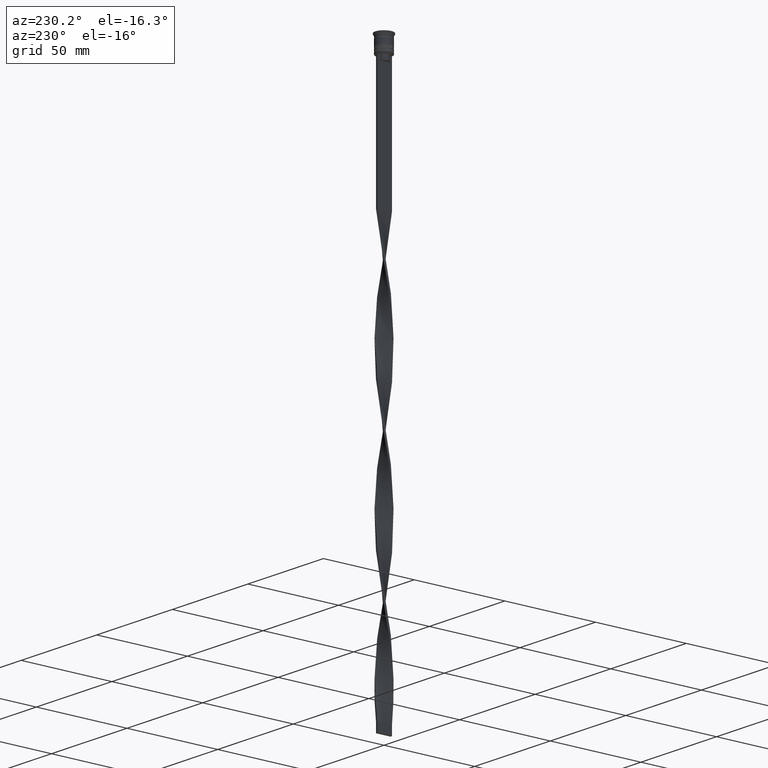
[diagram: clean part render]
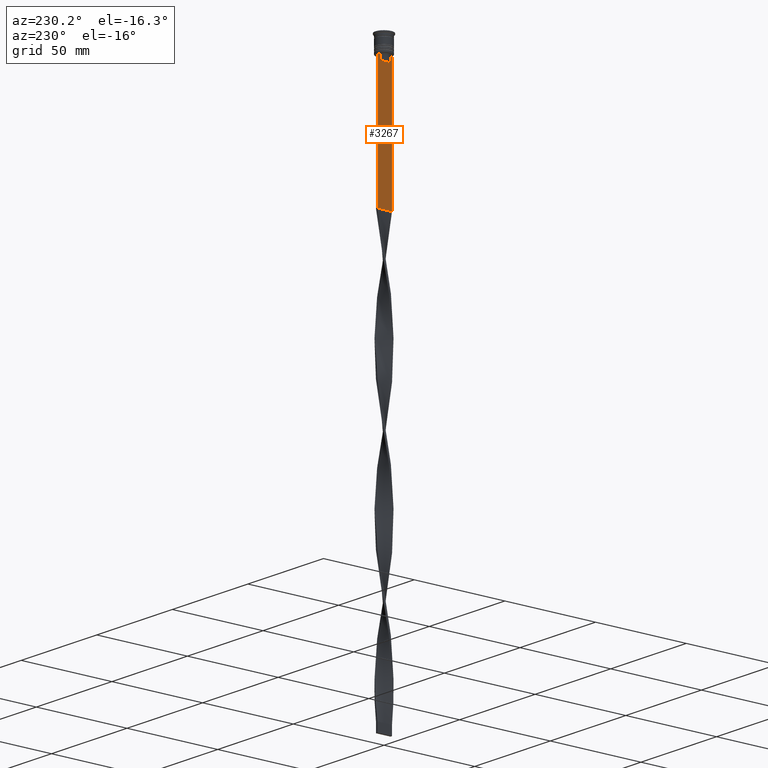
[diagram: same view with one face highlighted and labeled with its STEP entity id]
A machine part, auxiliary view. The second image highlights one B-rep face of the part: STEP entity #3267.
In plain terms, the highlighted planar face has unit normal (-1, 0, 0).
Its self-contained STEP definition (entity closure, byte-faithful):
#5 = CARTESIAN_POINT ( 'NONE',  ( -0.5000000000000000000, -4.000000000000000000, -1.437742251701450202 ) ) ;
#7 = CARTESIAN_POINT ( 'NONE',  ( -0.5000000000000000000, 4.000000000000000000, -78.00000000000000000 ) ) ;
#189 = LINE ( 'NONE', #1429, #1840 ) ;
#231 = DIRECTION ( 'NONE',  ( -1.000000000000000000, 0.000000000000000000, 0.000000000000000000 ) ) ;
#337 = CARTESIAN_POINT ( 'NONE',  ( -0.5000000000000000000, -4.000000000000000000, -78.00000000000000000 ) ) ;
#389 = VERTEX_POINT ( 'NONE', #7 ) ;
#501 = PLANE ( 'NONE',  #1921 ) ;
#653 = CARTESIAN_POINT ( 'NONE',  ( -0.5000000000000000000, -4.000000000000000000, -78.00000000000000000 ) ) ;
#689 = ORIENTED_EDGE ( 'NONE', *, *, #2829, .T. ) ;
#761 = VERTEX_POINT ( 'NONE', #2192 ) ;
#768 = VERTEX_POINT ( 'NONE', #3708 ) ;
#788 = CARTESIAN_POINT ( 'NONE',  ( -0.5000000000000000000, -4.000000000000000000, -9.500000000000000000 ) ) ;
#824 = EDGE_CURVE ( 'NONE', #2775, #3923, #3350, .T. ) ;
#855 = CARTESIAN_POINT ( 'NONE',  ( -0.5000000000000000000, 4.000000000000000000, -1.437742251701450202 ) ) ;
#888 = ORIENTED_EDGE ( 'NONE', *, *, #2624, .F. ) ;
#956 = CARTESIAN_POINT ( 'NONE',  ( -0.5000000000000000000, 3.110064308016796897, -9.500000000000000000 ) ) ;
#961 = EDGE_CURVE ( 'NONE', #761, #1891, #3209, .T. ) ;
#994 = DIRECTION ( 'NONE',  ( 0.000000000000000000, 1.000000000000000000, 0.000000000000000000 ) ) ;
#1016 = DIRECTION ( 'NONE',  ( 0.000000000000000000, -1.000000000000000000, 0.000000000000000000 ) ) ;
#1142 = DIRECTION ( 'NONE',  ( 0.000000000000000000, 0.000000000000000000, -1.000000000000000000 ) ) ;
#1152 = FACE_OUTER_BOUND ( 'NONE', #2478, .T. ) ;
#1154 = ORIENTED_EDGE ( 'NONE', *, *, #1730, .F. ) ;
#1254 = VECTOR ( 'NONE', #2556, 1000.000000000000000 ) ;
#1271 = VECTOR ( 'NONE', #994, 1000.000000000000000 ) ;
#1287 = LINE ( 'NONE', #653, #1271 ) ;
#1344 = EDGE_CURVE ( 'NONE', #2877, #2433, #1917, .T. ) ;
#1345 = CARTESIAN_POINT ( 'NONE',  ( -0.5000000000000000000, 2.602402735934616906, -12.50000000000000000 ) ) ;
#1429 = CARTESIAN_POINT ( 'NONE',  ( -0.5000000000000000000, -2.602402735934616906, 0.000000000000000000 ) ) ;
#1498 = ORIENTED_EDGE ( 'NONE', *, *, #3748, .F. ) ;
#1506 = CARTESIAN_POINT ( 'NONE',  ( -0.5000000000000000000, 2.602402735934616906, 0.000000000000000000 ) ) ;
#1587 = CARTESIAN_POINT ( 'NONE',  ( -0.5000000000000000000, 2.602402735934616906, -10.00000000000000178 ) ) ;
#1709 = B_SPLINE_CURVE_WITH_KNOTS ( 'NONE', 3,
 ( #2440, #3329, #3941, #3007 ),
 .UNSPECIFIED., .F., .F.,
 ( 4, 4 ),
 ( 0.01295151922336848505, 0.01367164596165163643 ),
 .UNSPECIFIED. ) ;
#1730 = EDGE_CURVE ( 'NONE', #768, #1776, #189, .T. ) ;
#1739 = DIRECTION ( 'NONE',  ( 0.000000000000000000, 0.000000000000000000, 1.000000000000000000 ) ) ;
#1775 = VECTOR ( 'NONE', #1142, 1000.000000000000000 ) ;
#1776 = VERTEX_POINT ( 'NONE', #1928 ) ;
#1781 = VERTEX_POINT ( 'NONE', #3389 ) ;
#1840 = VECTOR ( 'NONE', #3913, 1000.000000000000000 ) ;
#1852 = VECTOR ( 'NONE', #1016, 1000.000000000000000 ) ;
#1891 = VERTEX_POINT ( 'NONE', #2527 ) ;
#1917 = LINE ( 'NONE', #5, #1254 ) ;
#1921 = AXIS2_PLACEMENT_3D ( 'NONE', #2055, #231, #1739 ) ;
#1928 = CARTESIAN_POINT ( 'NONE',  ( -0.5000000000000000000, -2.602402735934616906, -10.00000000000000178 ) ) ;
#1940 = CARTESIAN_POINT ( 'NONE',  ( -0.5000000000000000000, 2.941047749529104749, -9.666873766989334982 ) ) ;
#2055 = CARTESIAN_POINT ( 'NONE',  ( -0.5000000000000000000, -4.000000000000000000, -1.437742251701450202 ) ) ;
#2160 = LINE ( 'NONE', #855, #1775 ) ;
#2172 = CARTESIAN_POINT ( 'NONE',  ( -0.5000000000000000000, 2.649999999999995914, -12.50000000000000000 ) ) ;
#2192 = CARTESIAN_POINT ( 'NONE',  ( -0.5000000000000000000, 4.000000000000000000, -9.500000000000000000 ) ) ;
#2219 = ORIENTED_EDGE ( 'NONE', *, *, #3911, .F. ) ;
#2330 = ORIENTED_EDGE ( 'NONE', *, *, #3572, .F. ) ;
#2433 = VERTEX_POINT ( 'NONE', #337 ) ;
#2440 = CARTESIAN_POINT ( 'NONE',  ( -0.5000000000000000000, -2.602402735934616906, -10.00000000000000178 ) ) ;
#2478 = EDGE_LOOP ( 'NONE', ( #2983, #3493, #689, #1498, #2623, #2219, #2330, #1154, #888, #2589 ) ) ;
#2527 = CARTESIAN_POINT ( 'NONE',  ( -0.5000000000000000000, 3.110064308016796897, -9.500000000000000000 ) ) ;
#2556 = DIRECTION ( 'NONE',  ( 0.000000000000000000, 0.000000000000000000, -1.000000000000000000 ) ) ;
#2561 = CARTESIAN_POINT ( 'NONE',  ( -0.5000000000000000000, 2.771866350855961336, -9.833580160334840059 ) ) ;
#2589 = ORIENTED_EDGE ( 'NONE', *, *, #824, .F. ) ;
#2616 = VECTOR ( 'NONE', #3096, 1000.000000000000000 ) ;
#2623 = ORIENTED_EDGE ( 'NONE', *, *, #1344, .F. ) ;
#2624 = EDGE_CURVE ( 'NONE', #3923, #768, #3729, .T. ) ;
#2741 = VECTOR ( 'NONE', #3264, 1000.000000000000000 ) ;
#2749 = DIRECTION ( 'NONE',  ( 0.000000000000000000, 0.000000000000000000, -1.000000000000000000 ) ) ;
#2775 = VERTEX_POINT ( 'NONE', #3620 ) ;
#2829 = EDGE_CURVE ( 'NONE', #761, #389, #2160, .T. ) ;
#2863 = LINE ( 'NONE', #3444, #1852 ) ;
#2877 = VERTEX_POINT ( 'NONE', #3940 ) ;
#2983 = ORIENTED_EDGE ( 'NONE', *, *, #3804, .F. ) ;
#3007 = CARTESIAN_POINT ( 'NONE',  ( -0.5000000000000000000, -3.110064308016796897, -9.500000000000000000 ) ) ;
#3096 = DIRECTION ( 'NONE',  ( 0.000000000000000000, -1.000000000000000000, 0.000000000000000000 ) ) ;
#3209 = LINE ( 'NONE', #788, #2741 ) ;
#3264 = DIRECTION ( 'NONE',  ( 0.000000000000000000, -1.000000000000000000, 0.000000000000000000 ) ) ;
#3267 = ADVANCED_FACE ( 'NONE', ( #1152 ), #501, .T. ) ;
#3314 = VECTOR ( 'NONE', #2749, 1000.000000000000000 ) ;
#3329 = CARTESIAN_POINT ( 'NONE',  ( -0.5000000000000000000, -2.771864055700302476, -9.833582414266677674 ) ) ;
#3350 = LINE ( 'NONE', #1506, #3314 ) ;
#3389 = CARTESIAN_POINT ( 'NONE',  ( -0.5000000000000000000, -3.110064308016796897, -9.500000000000000000 ) ) ;
#3444 = CARTESIAN_POINT ( 'NONE',  ( -0.5000000000000000000, -4.000000000000000000, -9.500000000000000000 ) ) ;
#3493 = ORIENTED_EDGE ( 'NONE', *, *, #961, .F. ) ;
#3572 = EDGE_CURVE ( 'NONE', #1776, #1781, #1709, .T. ) ;
#3620 = CARTESIAN_POINT ( 'NONE',  ( -0.5000000000000000000, 2.602402735934616906, -10.00000000000000178 ) ) ;
#3708 = CARTESIAN_POINT ( 'NONE',  ( -0.5000000000000000000, -2.602402735934616906, -12.50000000000000000 ) ) ;
#3729 = LINE ( 'NONE', #2172, #2616 ) ;
#3748 = EDGE_CURVE ( 'NONE', #2433, #389, #1287, .T. ) ;
#3804 = EDGE_CURVE ( 'NONE', #1891, #2775, #3871, .T. ) ;
#3871 = B_SPLINE_CURVE_WITH_KNOTS ( 'NONE', 3,
 ( #956, #1940, #2561, #1587 ),
 .UNSPECIFIED., .F., .F.,
 ( 4, 4 ),
 ( 0.005378271293598281544, 0.006090816219556000749 ),
 .UNSPECIFIED. ) ;
#3911 = EDGE_CURVE ( 'NONE', #1781, #2877, #2863, .T. ) ;
#3913 = DIRECTION ( 'NONE',  ( -0.000000000000000000, -0.000000000000000000, 1.000000000000000000 ) ) ;
#3923 = VERTEX_POINT ( 'NONE', #1345 ) ;
#3940 = CARTESIAN_POINT ( 'NONE',  ( -0.5000000000000000000, -4.000000000000000000, -9.500000000000000000 ) ) ;
#3941 = CARTESIAN_POINT ( 'NONE',  ( -0.5000000000000000000, -2.941045828809988549, -9.666875663357577864 ) ) ;